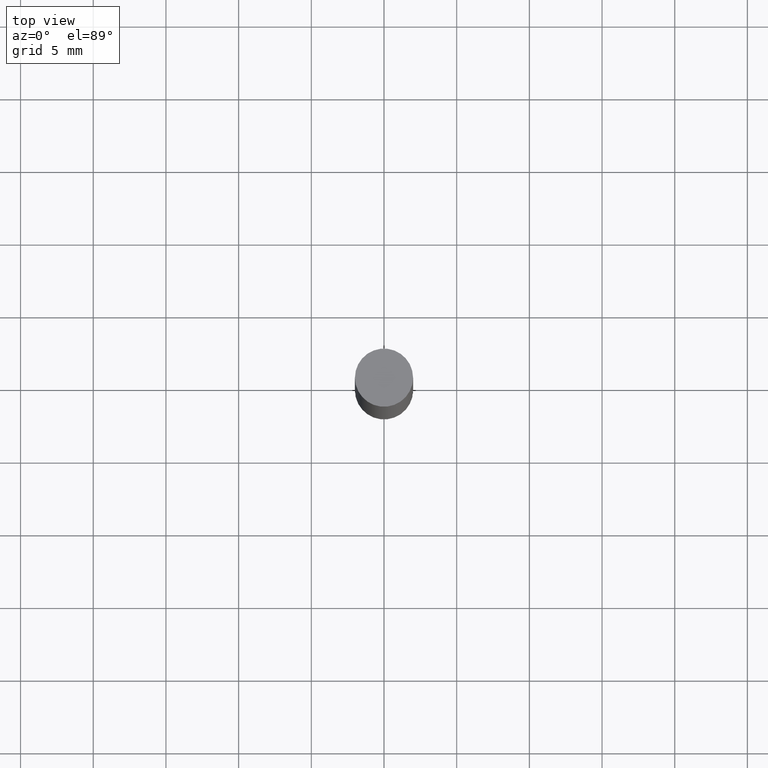
[diagram: clean part render]
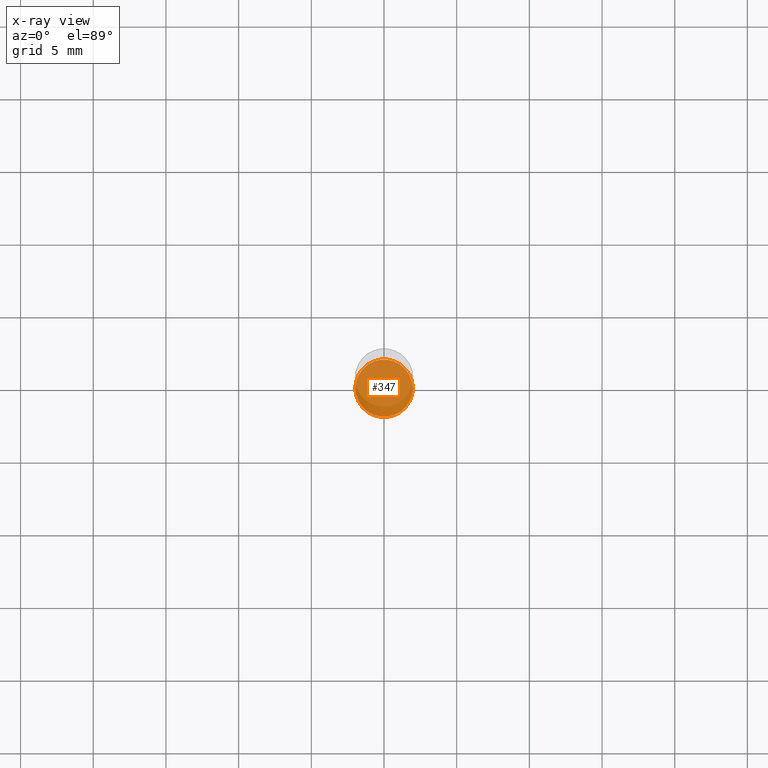
[diagram: x-ray — body ghosted, one internal face saturated and labeled with its STEP entity id]
A machine part, top view, then the same camera in x-ray: the body is ghosted and one INTERNAL B-rep face — a face not visible from any outside direction — is saturated and labeled: STEP entity #347.
In plain terms, the highlighted planar face has unit normal (-0, 0, 1).
Its self-contained STEP definition (entity closure, byte-faithful):
#51 = DIRECTION ( 'NONE',  ( 1.000000000000000000, -6.982962677686261977E-15, 0.000000000000000000 ) ) ;
#58 = CARTESIAN_POINT ( 'NONE',  ( 4.043582671027123201E-29, -5.773164393777141072E-15, -1.653499999999999970 ) ) ;
#68 = AXIS2_PLACEMENT_3D ( 'NONE', #58, #300, #448 ) ;
#111 = EDGE_LOOP ( 'NONE', ( #291, #439 ) ) ;
#170 = DIRECTION ( 'NONE',  ( 1.000000000000000000, -6.982962677686265922E-15, 4.876176775795935793E-29 ) ) ;
#234 = CIRCLE ( 'NONE', #68, 0.07774999999999999967 ) ;
#261 = PLANE ( 'NONE',  #264 ) ;
#264 = AXIS2_PLACEMENT_3D ( 'NONE', #370, #533, #170 ) ;
#274 = FACE_OUTER_BOUND ( 'NONE', #111, .T. ) ;
#279 = VERTEX_POINT ( 'NONE', #333 ) ;
#280 = CIRCLE ( 'NONE', #612, 0.07774999999999999967 ) ;
#291 = ORIENTED_EDGE ( 'NONE', *, *, #409, .F. ) ;
#300 = DIRECTION ( 'NONE',  ( -2.445468806185136597E-29, 3.491481338843145583E-15, 1.000000000000000000 ) ) ;
#330 = CARTESIAN_POINT ( 'NONE',  ( -0.07774999999999999967, -5.215418962375440876E-15, -1.653499999999999970 ) ) ;
#333 = CARTESIAN_POINT ( 'NONE',  ( 0.07774999999999999967, -6.316089741967247614E-15, -1.653499999999999970 ) ) ;
#347 = ADVANCED_FACE ( 'NONE', ( #274 ), #261, .F. ) ;
#370 = CARTESIAN_POINT ( 'NONE',  ( 4.043582671027123201E-29, -5.773164393777141072E-15, -1.653499999999999970 ) ) ;
#397 = VERTEX_POINT ( 'NONE', #330 ) ;
#409 = EDGE_CURVE ( 'NONE', #279, #397, #280, .T. ) ;
#439 = ORIENTED_EDGE ( 'NONE', *, *, #449, .F. ) ;
#448 = DIRECTION ( 'NONE',  ( 1.000000000000000000, -6.982962677686261977E-15, 0.000000000000000000 ) ) ;
#449 = EDGE_CURVE ( 'NONE', #397, #279, #234, .T. ) ;
#533 = DIRECTION ( 'NONE',  ( -2.438088387897960049E-29, 3.491481338843145188E-15, 1.000000000000000000 ) ) ;
#612 = AXIS2_PLACEMENT_3D ( 'NONE', #640, #645, #51 ) ;
#640 = CARTESIAN_POINT ( 'NONE',  ( 4.043582671027123201E-29, -5.773164393777141072E-15, -1.653499999999999970 ) ) ;
#645 = DIRECTION ( 'NONE',  ( -2.445468806185136597E-29, 3.491481338843145583E-15, 1.000000000000000000 ) ) ;